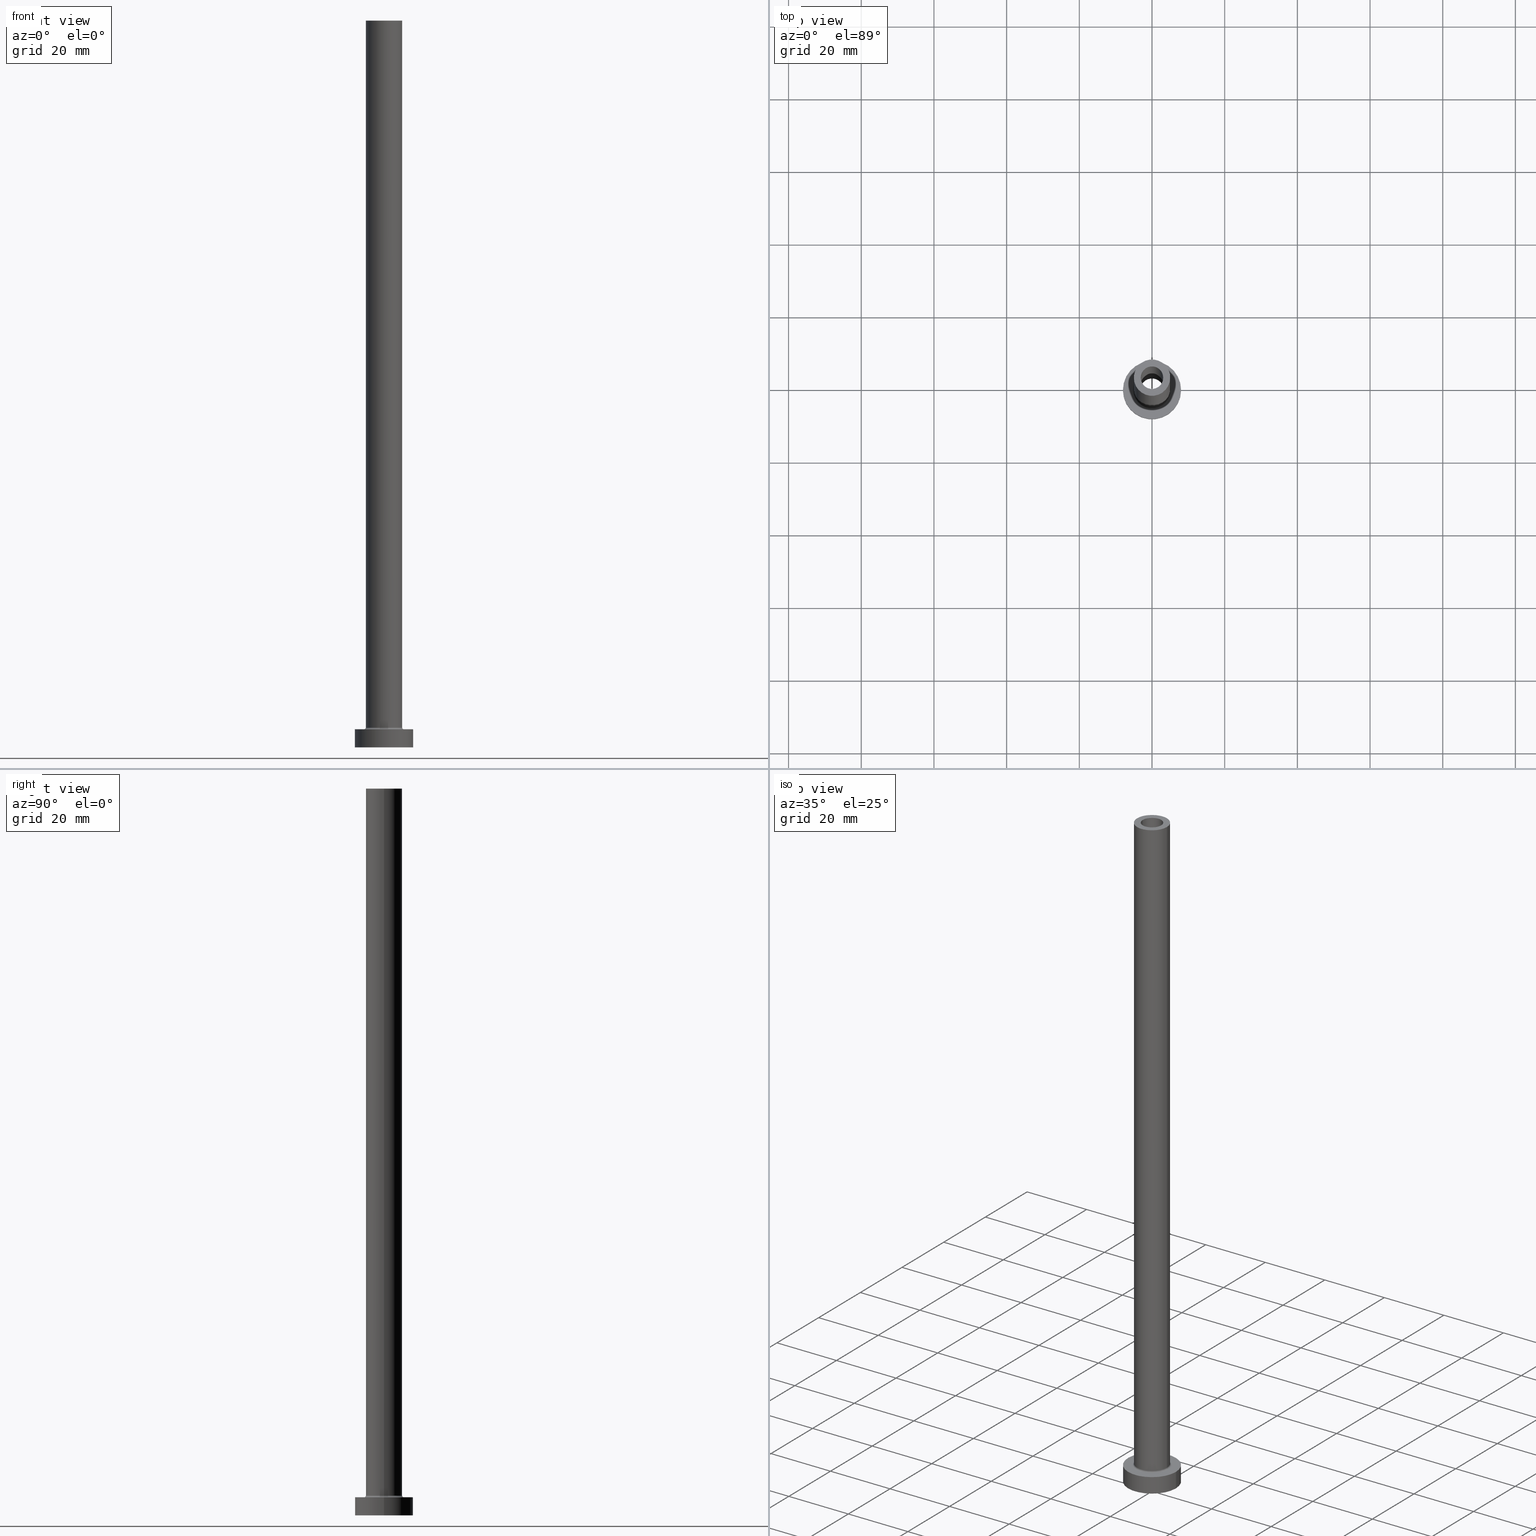
[diagram: canonical four-view strip — front | top / right | iso, engineering-drawing reading convention]
A machine part, canonical four-view strip (front | top / right | iso — engineering-drawing reading convention). The complete STEP part file that produces these views, byte-faithful:
ISO-10303-21;
HEADER;
FILE_DESCRIPTION (( 'STEP AP203' ),
    '1' );
FILE_NAME ('51bf.STEP',
    '2023-02-13T14:31:56',
    ( '' ),
    ( '' ),
    'SwSTEP 2.0',
    'SolidWorks 2019',
    '' );
FILE_SCHEMA (( 'CONFIG_CONTROL_DESIGN' ));
ENDSEC;

DATA;
#1 = CARTESIAN_POINT ( 'NONE',  ( 3.100000000000000089, 3.796405077356793932E-16, 200.0000000000000000 ) ) ;
#2 = ORIENTED_EDGE ( 'NONE', *, *, #10, .F. ) ;
#3 = LINE ( 'NONE', #324, #429 ) ;
#4 = CIRCLE ( 'NONE', #192, 3.250000000000000444 ) ;
#5 = ADVANCED_FACE ( 'NONE', ( #60 ), #376, .T. ) ;
#6 = TOROIDAL_SURFACE ( 'NONE', #163, 5.500000000000000000, 0.5000000000000000000 ) ;
#7 = LINE ( 'NONE', #145, #236 ) ;
#8 = ORIENTED_EDGE ( 'NONE', *, *, #143, .T. ) ;
#9 = FACE_BOUND ( 'NONE', #322, .T. ) ;
#10 = EDGE_CURVE ( 'NONE', #227, #153, #24, .T. ) ;
#11 = CARTESIAN_POINT ( 'NONE',  ( 0.000000000000000000, 0.000000000000000000, 5.000000000000000000 ) ) ;
#12 = AXIS2_PLACEMENT_3D ( 'NONE', #455, #129, #26 ) ;
#13 = CIRCLE ( 'NONE', #344, 3.100000000000000089 ) ;
#14 = EDGE_LOOP ( 'NONE', ( #223, #17, #74, #256 ) ) ;
#15 = DIRECTION ( 'NONE',  ( -0.000000000000000000, -0.000000000000000000, -1.000000000000000000 ) ) ;
#16 = ORIENTED_EDGE ( 'NONE', *, *, #41, .T. ) ;
#17 = ORIENTED_EDGE ( 'NONE', *, *, #238, .T. ) ;
#18 = FACE_OUTER_BOUND ( 'NONE', #258, .T. ) ;
#19 = EDGE_LOOP ( 'NONE', ( #157, #44 ) ) ;
#20 = CALENDAR_DATE ( 2023, 13, 2 ) ;
#21 = ORIENTED_EDGE ( 'NONE', *, *, #189, .F. ) ;
#22 = CARTESIAN_POINT ( 'NONE',  ( 0.000000000000000000, 0.000000000000000000, 0.000000000000000000 ) ) ;
#23 = CC_DESIGN_DATE_AND_TIME_ASSIGNMENT ( #454, #308, ( #252 ) ) ;
#24 = LINE ( 'NONE', #162, #71 ) ;
#25 = CALENDAR_DATE ( 2023, 13, 2 ) ;
#26 = DIRECTION ( 'NONE',  ( 1.000000000000000000, 0.000000000000000000, 0.000000000000000000 ) ) ;
#27 = DIRECTION ( 'NONE',  ( 1.000000000000000000, 0.000000000000000000, 0.000000000000000000 ) ) ;
#28 = EDGE_CURVE ( 'NONE', #331, #360, #277, .T. ) ;
#29 = DIRECTION ( 'NONE',  ( 1.000000000000000000, 0.000000000000000000, 0.000000000000000000 ) ) ;
#30 = CARTESIAN_POINT ( 'NONE',  ( 5.000000000000000000, 6.123233995736766282E-16, 200.0000000000000000 ) ) ;
#31 = CARTESIAN_POINT ( 'NONE',  ( 3.250000000000000444, 3.980102097228898231E-16, 155.0000000000000284 ) ) ;
#32 = CC_DESIGN_APPROVAL ( #180, ( #252 ) ) ;
#33 = CARTESIAN_POINT ( 'NONE',  ( 0.000000000000000000, 0.000000000000000000, 155.0000000000000284 ) ) ;
#34 = FACE_OUTER_BOUND ( 'NONE', #50, .T. ) ;
#35 = ORIENTED_EDGE ( 'NONE', *, *, #349, .T. ) ;
#36 = DESIGN_CONTEXT ( 'detailed design', #160, 'design' ) ;
#37 = DIRECTION ( 'NONE',  ( -0.000000000000000000, -0.000000000000000000, -1.000000000000000000 ) ) ;
#38 = CIRCLE ( 'NONE', #59, 3.250000000000000444 ) ;
#39 = CARTESIAN_POINT ( 'NONE',  ( -3.100000000000000089, 0.000000000000000000, 200.0000000000000000 ) ) ;
#40 = ORIENTED_EDGE ( 'NONE', *, *, #316, .F. ) ;
#41 = EDGE_CURVE ( 'NONE', #360, #53, #319, .T. ) ;
#42 = DIRECTION ( 'NONE',  ( 0.000000000000000000, 0.000000000000000000, -1.000000000000000000 ) ) ;
#43 = DIRECTION ( 'NONE',  ( 1.000000000000000000, 0.000000000000000000, -0.000000000000000000 ) ) ;
#44 = ORIENTED_EDGE ( 'NONE', *, *, #349, .F. ) ;
#45 = AXIS2_PLACEMENT_3D ( 'NONE', #22, #418, #29 ) ;
#46 = CARTESIAN_POINT ( 'NONE',  ( 0.000000000000000000, 0.000000000000000000, 0.000000000000000000 ) ) ;
#47 = ORIENTED_EDGE ( 'NONE', *, *, #362, .T. ) ;
#48 = CARTESIAN_POINT ( 'NONE',  ( 0.000000000000000000, 0.000000000000000000, 200.0000000000000000 ) ) ;
#49 = ORIENTED_EDGE ( 'NONE', *, *, #155, .F. ) ;
#50 = EDGE_LOOP ( 'NONE', ( #2, #35, #173, #401 ) ) ;
#51 = CIRCLE ( 'NONE', #312, 5.000000000000000000 ) ;
#52 = APPROVAL_ROLE ( '' ) ;
#53 = VERTEX_POINT ( 'NONE', #374 ) ;
#54 = EDGE_CURVE ( 'NONE', #178, #103, #131, .T. ) ;
#55 = CALENDAR_DATE ( 2023, 13, 2 ) ;
#56 = CARTESIAN_POINT ( 'NONE',  ( 0.000000000000000000, 0.000000000000000000, 5.500000000000005329 ) ) ;
#57 = DATE_AND_TIME ( #20, #219 ) ;
#58 = DIRECTION ( 'NONE',  ( 1.000000000000000000, 0.000000000000000000, -0.000000000000000000 ) ) ;
#59 = AXIS2_PLACEMENT_3D ( 'NONE', #105, #69, #247 ) ;
#60 = FACE_OUTER_BOUND ( 'NONE', #191, .T. ) ;
#61 = EDGE_CURVE ( 'NONE', #387, #153, #380, .T. ) ;
#62 = APPROVAL_ROLE ( '' ) ;
#63 = DIRECTION ( 'NONE',  ( -0.000000000000000000, -0.000000000000000000, -1.000000000000000000 ) ) ;
#64 = AXIS2_PLACEMENT_3D ( 'NONE', #235, #379, #196 ) ;
#65 = FACE_OUTER_BOUND ( 'NONE', #393, .T. ) ;
#66 = AXIS2_PLACEMENT_3D ( 'NONE', #68, #72, #240 ) ;
#67 = PLANE ( 'NONE',  #124 ) ;
#68 = CARTESIAN_POINT ( 'NONE',  ( 0.000000000000000000, 0.000000000000000000, 5.000000000000000000 ) ) ;
#69 = DIRECTION ( 'NONE',  ( -0.000000000000000000, -0.000000000000000000, -1.000000000000000000 ) ) ;
#70 = ADVANCED_FACE ( 'NONE', ( #127 ), #130, .F. ) ;
#71 = VECTOR ( 'NONE', #309, 1000.000000000000000 ) ;
#72 = DIRECTION ( 'NONE',  ( 0.000000000000000000, 0.000000000000000000, 1.000000000000000000 ) ) ;
#73 = DIRECTION ( 'NONE',  ( 1.000000000000000000, 0.000000000000000000, -0.000000000000000000 ) ) ;
#74 = ORIENTED_EDGE ( 'NONE', *, *, #189, .T. ) ;
#75 = CYLINDRICAL_SURFACE ( 'NONE', #228, 3.250000000000000444 ) ;
#76 = VERTEX_POINT ( 'NONE', #91 ) ;
#77 = CLOSED_SHELL ( 'NONE', ( #330, #456, #398, #5, #417, #355, #307, #445, #407, #388, #70, #338, #86, #222 ) ) ;
#78 = ORGANIZATION ( 'NEUR�EN�', 'NEUR�EN�', '' ) ;
#79 = APPROVAL ( #375, 'NEUR�EN�' ) ;
#80 = FACE_OUTER_BOUND ( 'NONE', #356, .T. ) ;
#81 = EDGE_LOOP ( 'NONE', ( #243, #21 ) ) ;
#82 = DIRECTION ( 'NONE',  ( 0.000000000000000000, 0.000000000000000000, 1.000000000000000000 ) ) ;
#83 = EDGE_LOOP ( 'NONE', ( #368, #408, #254, #328 ) ) ;
#84 = DIRECTION ( 'NONE',  ( 1.000000000000000000, 0.000000000000000000, 0.000000000000000000 ) ) ;
#85 = ORIENTED_EDGE ( 'NONE', *, *, #383, .F. ) ;
#86 = ADVANCED_FACE ( 'NONE', ( #424, #168 ), #233, .F. ) ;
#87 = CC_DESIGN_APPROVAL ( #170, ( #214 ) ) ;
#88 = APPROVAL_DATE_TIME ( #57, #79 ) ;
#89 = CARTESIAN_POINT ( 'NONE',  ( 0.000000000000000000, 0.000000000000000000, 200.0000000000000000 ) ) ;
#90 = PERSON_AND_ORGANIZATION_ROLE ( 'classification_officer' ) ;
#91 = CARTESIAN_POINT ( 'NONE',  ( 3.100000000000000089, 3.796405077356793932E-16, 155.0000000000000284 ) ) ;
#92 = COORDINATED_UNIVERSAL_TIME_OFFSET ( 1, 0, .AHEAD. ) ;
#93 = CARTESIAN_POINT ( 'NONE',  ( -3.250000000000000444, 0.000000000000000000, 155.0000000000000284 ) ) ;
#94 = DATE_TIME_ROLE ( 'classification_date' ) ;
#95 = CIRCLE ( 'NONE', #320, 5.500000000000000000 ) ;
#96 = CARTESIAN_POINT ( 'NONE',  ( -3.100000000000000089, 0.000000000000000000, 155.0000000000000284 ) ) ;
#97 = MANIFOLD_SOLID_BREP ( 'Odebrat vysunut�m4', #77 ) ;
#98 = CARTESIAN_POINT ( 'NONE',  ( -3.250000000000000444, 0.000000000000000000, 164.1923881554251352 ) ) ;
#99 = FACE_OUTER_BOUND ( 'NONE', #184, .T. ) ;
#100 = CC_DESIGN_PERSON_AND_ORGANIZATION_ASSIGNMENT ( #121, #370, ( #252 ) ) ;
#101 = DIRECTION ( 'NONE',  ( 0.000000000000000000, 0.000000000000000000, 1.000000000000000000 ) ) ;
#102 = DIRECTION ( 'NONE',  ( -0.000000000000000000, -0.000000000000000000, -1.000000000000000000 ) ) ;
#103 = VERTEX_POINT ( 'NONE', #166 ) ;
#104 = EDGE_CURVE ( 'NONE', #217, #294, #249, .T. ) ;
#105 = CARTESIAN_POINT ( 'NONE',  ( 0.000000000000000000, 0.000000000000000000, 0.000000000000000000 ) ) ;
#106 = ADVANCED_BREP_SHAPE_REPRESENTATION ( '51bf', ( #97, #45 ), #371 ) ;
#107 = CARTESIAN_POINT ( 'NONE',  ( 0.000000000000000000, 0.000000000000000000, 155.0000000000000284 ) ) ;
#108 = AXIS2_PLACEMENT_3D ( 'NONE', #89, #230, #199 ) ;
#109 = ORIENTED_EDGE ( 'NONE', *, *, #362, .F. ) ;
#110 = CARTESIAN_POINT ( 'NONE',  ( 8.000000000000000000, 9.797174393178825657E-16, 0.000000000000000000 ) ) ;
#111 = VERTEX_POINT ( 'NONE', #96 ) ;
#112 = CC_DESIGN_PERSON_AND_ORGANIZATION_ASSIGNMENT ( #195, #415, ( #214 ) ) ;
#113 =( NAMED_UNIT ( * ) SI_UNIT ( $, .STERADIAN. ) SOLID_ANGLE_UNIT ( ) );
#114 = VERTEX_POINT ( 'NONE', #93 ) ;
#115 = AXIS2_PLACEMENT_3D ( 'NONE', #345, #204, #382 ) ;
#116 = AXIS2_PLACEMENT_3D ( 'NONE', #46, #82, #43 ) ;
#117 = EDGE_LOOP ( 'NONE', ( #151, #176 ) ) ;
#118 = PLANE ( 'NONE',  #422 ) ;
#119 = EDGE_CURVE ( 'NONE', #178, #360, #169, .T. ) ;
#120 = ORIENTED_EDGE ( 'NONE', *, *, #238, .F. ) ;
#121 = PERSON_AND_ORGANIZATION ( #399, #78 ) ;
#122 = CARTESIAN_POINT ( 'NONE',  ( 0.000000000000000000, 0.000000000000000000, 155.0000000000000284 ) ) ;
#123 = VECTOR ( 'NONE', #306, 1000.000000000000000 ) ;
#124 = AXIS2_PLACEMENT_3D ( 'NONE', #209, #314, #384 ) ;
#125 = COORDINATED_UNIVERSAL_TIME_OFFSET ( 1, 0, .AHEAD. ) ;
#126 = DIRECTION ( 'NONE',  ( 0.000000000000000000, 0.000000000000000000, -1.000000000000000000 ) ) ;
#127 = FACE_OUTER_BOUND ( 'NONE', #432, .T. ) ;
#128 = MECHANICAL_CONTEXT ( 'NONE', #411, 'mechanical' ) ;
#129 = DIRECTION ( 'NONE',  ( 0.000000000000000000, 0.000000000000000000, 1.000000000000000000 ) ) ;
#130 = TOROIDAL_SURFACE ( 'NONE', #264, 5.500000000000000000, 0.5000000000000000000 ) ;
#131 = CIRCLE ( 'NONE', #115, 0.5000000000000004441 ) ;
#132 = CALENDAR_DATE ( 2023, 13, 2 ) ;
#133 = APPROVAL_PERSON_ORGANIZATION ( #167, #180, #373 ) ;
#134 = CARTESIAN_POINT ( 'NONE',  ( 0.000000000000000000, 0.000000000000000000, 155.0000000000000284 ) ) ;
#135 = CARTESIAN_POINT ( 'NONE',  ( 5.000000000000000000, 6.123233995736766282E-16, 200.0000000000000000 ) ) ;
#136 = CC_DESIGN_PERSON_AND_ORGANIZATION_ASSIGNMENT ( #226, #158, ( #214 ) ) ;
#137 = DIRECTION ( 'NONE',  ( 0.000000000000000000, 0.000000000000000000, 1.000000000000000000 ) ) ;
#138 = ORIENTED_EDGE ( 'NONE', *, *, #119, .T. ) ;
#139 = AXIS2_PLACEMENT_3D ( 'NONE', #452, #268, #126 ) ;
#140 = CARTESIAN_POINT ( 'NONE',  ( 0.000000000000000000, 0.000000000000000000, 5.000000000000000000 ) ) ;
#141 = CC_DESIGN_APPROVAL ( #79, ( #430 ) ) ;
#142 = ORIENTED_EDGE ( 'NONE', *, *, #216, .F. ) ;
#143 = EDGE_CURVE ( 'NONE', #331, #442, #51, .T. ) ;
#144 = UNCERTAINTY_MEASURE_WITH_UNIT (LENGTH_MEASURE( 1.000000000000000082E-05 ), #152, 'distance_accuracy_value', 'NONE');
#145 = CARTESIAN_POINT ( 'NONE',  ( -3.100000000000000089, 0.000000000000000000, 200.0000000000000000 ) ) ;
#146 = CARTESIAN_POINT ( 'NONE',  ( 0.000000000000000000, 0.000000000000000000, 200.0000000000000000 ) ) ;
#147 = DIRECTION ( 'NONE',  ( 0.000000000000000000, 0.000000000000000000, 1.000000000000000000 ) ) ;
#148 = AXIS2_PLACEMENT_3D ( 'NONE', #140, #137, #461 ) ;
#149 = CARTESIAN_POINT ( 'NONE',  ( -3.250000000000000444, 0.000000000000000000, 0.000000000000000000 ) ) ;
#150 = PRODUCT_RELATED_PRODUCT_CATEGORY ( 'detail', '', ( #390 ) ) ;
#151 = ORIENTED_EDGE ( 'NONE', *, *, #316, .T. ) ;
#152 =( LENGTH_UNIT ( ) NAMED_UNIT ( * ) SI_UNIT ( .MILLI., .METRE. ) );
#153 = VERTEX_POINT ( 'NONE', #311 ) ;
#154 = ORIENTED_EDGE ( 'NONE', *, *, #439, .F. ) ;
#155 = EDGE_CURVE ( 'NONE', #360, #178, #182, .T. ) ;
#156 =( NAMED_UNIT ( * ) PLANE_ANGLE_UNIT ( ) SI_UNIT ( $, .RADIAN. ) );
#157 = ORIENTED_EDGE ( 'NONE', *, *, #271, .F. ) ;
#158 = PERSON_AND_ORGANIZATION_ROLE ( 'design_supplier' ) ;
#159 = DIRECTION ( 'NONE',  ( 1.000000000000000000, 0.000000000000000000, 0.000000000000000000 ) ) ;
#160 = APPLICATION_CONTEXT ( 'configuration controlled 3d designs of mechanical parts and assemblies' ) ;
#161 = DATE_AND_TIME ( #25, #257 ) ;
#162 = CARTESIAN_POINT ( 'NONE',  ( 3.250000000000000444, 3.980102097228898231E-16, 164.1923881554251352 ) ) ;
#163 = AXIS2_PLACEMENT_3D ( 'NONE', #441, #359, #179 ) ;
#164 = DIRECTION ( 'NONE',  ( 0.000000000000000000, 0.000000000000000000, 1.000000000000000000 ) ) ;
#165 = EDGE_CURVE ( 'NONE', #114, #387, #270, .T. ) ;
#166 = CARTESIAN_POINT ( 'NONE',  ( -5.500000000000000000, 6.735557395310442023E-16, 5.000000000000002665 ) ) ;
#167 = PERSON_AND_ORGANIZATION ( #399, #78 ) ;
#168 = FACE_OUTER_BOUND ( 'NONE', #19, .T. ) ;
#169 = CIRCLE ( 'NONE', #12, 5.000000000000000000 ) ;
#170 = APPROVAL ( #457, 'NEUR�EN�' ) ;
#171 = CARTESIAN_POINT ( 'NONE',  ( 0.000000000000000000, 0.000000000000000000, 200.0000000000000000 ) ) ;
#172 = CARTESIAN_POINT ( 'NONE',  ( -5.000000000000000000, 0.000000000000000000, 200.0000000000000000 ) ) ;
#173 = ORIENTED_EDGE ( 'NONE', *, *, #165, .T. ) ;
#174 = DIRECTION ( 'NONE',  ( 0.000000000000000000, 0.000000000000000000, -1.000000000000000000 ) ) ;
#175 = DIRECTION ( 'NONE',  ( -1.000000000000000000, 0.000000000000000000, 0.000000000000000000 ) ) ;
#176 = ORIENTED_EDGE ( 'NONE', *, *, #287, .T. ) ;
#177 = CARTESIAN_POINT ( 'NONE',  ( 8.000000000000000000, 9.797174393178825657E-16, 5.000000000000000000 ) ) ;
#178 = VERTEX_POINT ( 'NONE', #459 ) ;
#179 = DIRECTION ( 'NONE',  ( 1.000000000000000000, 0.000000000000000000, 0.000000000000000000 ) ) ;
#180 = APPROVAL ( #423, 'NEUR�EN�' ) ;
#181 = FACE_OUTER_BOUND ( 'NONE', #14, .T. ) ;
#182 = CIRCLE ( 'NONE', #304, 5.000000000000000000 ) ;
#183 = CIRCLE ( 'NONE', #394, 3.100000000000000089 ) ;
#184 = EDGE_LOOP ( 'NONE', ( #120, #40, #295, #447 ) ) ;
#185 = DIRECTION ( 'NONE',  ( -0.000000000000000000, -0.000000000000000000, -1.000000000000000000 ) ) ;
#186 = ORIENTED_EDGE ( 'NONE', *, *, #61, .F. ) ;
#187 = DIRECTION ( 'NONE',  ( -1.000000000000000000, 0.000000000000000000, 0.000000000000000000 ) ) ;
#188 = ORIENTED_EDGE ( 'NONE', *, *, #425, .T. ) ;
#189 = EDGE_CURVE ( 'NONE', #405, #292, #437, .T. ) ;
#190 = DIRECTION ( 'NONE',  ( 1.000000000000000000, 0.000000000000000000, 0.000000000000000000 ) ) ;
#191 = EDGE_LOOP ( 'NONE', ( #436, #339, #353, #142 ) ) ;
#192 = AXIS2_PLACEMENT_3D ( 'NONE', #33, #350, #279 ) ;
#193 = SHAPE_DEFINITION_REPRESENTATION ( #246, #106 ) ;
#194 = VERTEX_POINT ( 'NONE', #302 ) ;
#195 = PERSON_AND_ORGANIZATION ( #399, #78 ) ;
#196 = DIRECTION ( 'NONE',  ( 1.000000000000000000, 0.000000000000000000, 0.000000000000000000 ) ) ;
#197 = PERSON_AND_ORGANIZATION ( #399, #78 ) ;
#198 = EDGE_CURVE ( 'NONE', #76, #111, #412, .T. ) ;
#199 = DIRECTION ( 'NONE',  ( 1.000000000000000000, 0.000000000000000000, 0.000000000000000000 ) ) ;
#200 = VECTOR ( 'NONE', #285, 1000.000000000000000 ) ;
#201 = AXIS2_PLACEMENT_3D ( 'NONE', #435, #174, #357 ) ;
#202 = DIRECTION ( 'NONE',  ( -0.000000000000000000, -0.000000000000000000, -1.000000000000000000 ) ) ;
#203 = COORDINATED_UNIVERSAL_TIME_OFFSET ( 1, 0, .AHEAD. ) ;
#204 = DIRECTION ( 'NONE',  ( 1.224646799147353207E-16, 1.000000000000000000, -0.000000000000000000 ) ) ;
#205 = EDGE_CURVE ( 'NONE', #442, #331, #361, .T. ) ;
#206 = CARTESIAN_POINT ( 'NONE',  ( 0.000000000000000000, 0.000000000000000000, 200.0000000000000000 ) ) ;
#207 = AXIS2_PLACEMENT_3D ( 'NONE', #122, #453, #263 ) ;
#208 = APPROVAL_PERSON_ORGANIZATION ( #234, #79, #52 ) ;
#209 = CARTESIAN_POINT ( 'NONE',  ( 0.000000000000000000, 0.000000000000000000, 5.000000000000000000 ) ) ;
#210 = FACE_OUTER_BOUND ( 'NONE', #397, .T. ) ;
#211 = CARTESIAN_POINT ( 'NONE',  ( 5.000000000000000000, 6.123233995736766282E-16, 5.500000000000005329 ) ) ;
#212 = ORIENTED_EDGE ( 'NONE', *, *, #104, .T. ) ;
#213 = CYLINDRICAL_SURFACE ( 'NONE', #305, 3.100000000000000089 ) ;
#214 = PRODUCT_DEFINITION_FORMATION_WITH_SPECIFIED_SOURCE ( 'LIBOVOLN�', '', #390, .NOT_KNOWN. ) ;
#215 = CYLINDRICAL_SURFACE ( 'NONE', #402, 3.100000000000000089 ) ;
#216 = EDGE_CURVE ( 'NONE', #442, #178, #341, .T. ) ;
#217 = VERTEX_POINT ( 'NONE', #1 ) ;
#218 = DIRECTION ( 'NONE',  ( 0.000000000000000000, 0.000000000000000000, -1.000000000000000000 ) ) ;
#219 = LOCAL_TIME ( 15, 31, 56.00000000000000000, #420 ) ;
#220 = EDGE_LOOP ( 'NONE', ( #372, #8 ) ) ;
#221 = DIRECTION ( 'NONE',  ( -1.000000000000000000, 0.000000000000000000, 0.000000000000000000 ) ) ;
#222 = ADVANCED_FACE ( 'NONE', ( #210 ), #215, .F. ) ;
#223 = ORIENTED_EDGE ( 'NONE', *, *, #287, .F. ) ;
#224 = CARTESIAN_POINT ( 'NONE',  ( 0.000000000000000000, 0.000000000000000000, 200.0000000000000000 ) ) ;
#225 = ORIENTED_EDGE ( 'NONE', *, *, #369, .F. ) ;
#226 = PERSON_AND_ORGANIZATION ( #399, #78 ) ;
#227 = VERTEX_POINT ( 'NONE', #31 ) ;
#228 = AXIS2_PLACEMENT_3D ( 'NONE', #367, #42, #221 ) ;
#229 = PERSON_AND_ORGANIZATION_ROLE ( 'design_owner' ) ;
#230 = DIRECTION ( 'NONE',  ( 0.000000000000000000, 0.000000000000000000, 1.000000000000000000 ) ) ;
#231 = CC_DESIGN_DATE_AND_TIME_ASSIGNMENT ( #232, #94, ( #430 ) ) ;
#232 = DATE_AND_TIME ( #132, #403 ) ;
#233 = PLANE ( 'NONE',  #458 ) ;
#234 = PERSON_AND_ORGANIZATION ( #399, #78 ) ;
#235 = CARTESIAN_POINT ( 'NONE',  ( 0.000000000000000000, 0.000000000000000000, 200.0000000000000000 ) ) ;
#236 = VECTOR ( 'NONE', #218, 1000.000000000000000 ) ;
#237 = DIRECTION ( 'NONE',  ( 0.000000000000000000, 0.000000000000000000, 1.000000000000000000 ) ) ;
#238 = EDGE_CURVE ( 'NONE', #298, #405, #3, .T. ) ;
#239 = CARTESIAN_POINT ( 'NONE',  ( 0.000000000000000000, 0.000000000000000000, 0.000000000000000000 ) ) ;
#240 = DIRECTION ( 'NONE',  ( 1.000000000000000000, 0.000000000000000000, 0.000000000000000000 ) ) ;
#241 = CIRCLE ( 'NONE', #148, 8.000000000000000000 ) ;
#242 = DIRECTION ( 'NONE',  ( 1.000000000000000000, 0.000000000000000000, 0.000000000000000000 ) ) ;
#243 = ORIENTED_EDGE ( 'NONE', *, *, #281, .F. ) ;
#244 = EDGE_CURVE ( 'NONE', #194, #292, #428, .T. ) ;
#245 = DIRECTION ( 'NONE',  ( -1.000000000000000000, 0.000000000000000000, 0.000000000000000000 ) ) ;
#246 = PRODUCT_DEFINITION_SHAPE ( 'NONE', 'NONE',  #252 ) ;
#247 = DIRECTION ( 'NONE',  ( 1.000000000000000000, 0.000000000000000000, 0.000000000000000000 ) ) ;
#248 = ORIENTED_EDGE ( 'NONE', *, *, #119, .F. ) ;
#249 = CIRCLE ( 'NONE', #108, 3.100000000000000089 ) ;
#250 = AXIS2_PLACEMENT_3D ( 'NONE', #409, #185, #332 ) ;
#251 = CARTESIAN_POINT ( 'NONE',  ( -8.000000000000000000, 0.000000000000000000, 0.000000000000000000 ) ) ;
#252 = PRODUCT_DEFINITION ( 'NEZN�M�', '', #214, #36 ) ;
#253 = CARTESIAN_POINT ( 'NONE',  ( 0.000000000000000000, 0.000000000000000000, 155.0000000000000284 ) ) ;
#254 = ORIENTED_EDGE ( 'NONE', *, *, #323, .T. ) ;
#255 = CYLINDRICAL_SURFACE ( 'NONE', #282, 8.000000000000000000 ) ;
#256 = ORIENTED_EDGE ( 'NONE', *, *, #244, .F. ) ;
#257 = LOCAL_TIME ( 15, 31, 56.00000000000000000, #203 ) ;
#258 = EDGE_LOOP ( 'NONE', ( #351, #300, #410, #138 ) ) ;
#259 = FACE_BOUND ( 'NONE', #444, .T. ) ;
#260 = ORIENTED_EDGE ( 'NONE', *, *, #439, .T. ) ;
#261 = DIRECTION ( 'NONE',  ( 0.000000000000000000, 0.000000000000000000, 1.000000000000000000 ) ) ;
#262 = ORIENTED_EDGE ( 'NONE', *, *, #54, .T. ) ;
#263 = DIRECTION ( 'NONE',  ( 1.000000000000000000, 0.000000000000000000, 0.000000000000000000 ) ) ;
#264 = AXIS2_PLACEMENT_3D ( 'NONE', #346, #237, #27 ) ;
#265 = CC_DESIGN_PERSON_AND_ORGANIZATION_ASSIGNMENT ( #377, #90, ( #430 ) ) ;
#266 = AXIS2_PLACEMENT_3D ( 'NONE', #107, #318, #426 ) ;
#267 = PERSON_AND_ORGANIZATION ( #399, #78 ) ;
#268 = DIRECTION ( 'NONE',  ( 0.000000000000000000, -1.000000000000000000, 0.000000000000000000 ) ) ;
#269 = CALENDAR_DATE ( 2023, 13, 2 ) ;
#270 = LINE ( 'NONE', #98, #123 ) ;
#271 = EDGE_CURVE ( 'NONE', #114, #227, #4, .T. ) ;
#272 = SECURITY_CLASSIFICATION_LEVEL ( 'unclassified' ) ;
#273 = CARTESIAN_POINT ( 'NONE',  ( 0.000000000000000000, 0.000000000000000000, 0.000000000000000000 ) ) ;
#274 = AXIS2_PLACEMENT_3D ( 'NONE', #303, #414, #450 ) ;
#275 = CC_DESIGN_SECURITY_CLASSIFICATION ( #430, ( #214 ) ) ;
#276 = APPLICATION_PROTOCOL_DEFINITION ( 'international standard', 'config_control_design', 1994, #160 ) ;
#277 = LINE ( 'NONE', #30, #335 ) ;
#278 = CARTESIAN_POINT ( 'NONE',  ( 0.000000000000000000, 0.000000000000000000, 0.000000000000000000 ) ) ;
#279 = DIRECTION ( 'NONE',  ( 1.000000000000000000, 0.000000000000000000, 0.000000000000000000 ) ) ;
#280 = ORIENTED_EDGE ( 'NONE', *, *, #198, .F. ) ;
#281 = EDGE_CURVE ( 'NONE', #292, #405, #326, .T. ) ;
#282 = AXIS2_PLACEMENT_3D ( 'NONE', #11, #15, #400 ) ;
#283 = CYLINDRICAL_SURFACE ( 'NONE', #348, 8.000000000000000000 ) ;
#284 = ORIENTED_EDGE ( 'NONE', *, *, #104, .F. ) ;
#285 = DIRECTION ( 'NONE',  ( -0.000000000000000000, -0.000000000000000000, -1.000000000000000000 ) ) ;
#286 = ORIENTED_EDGE ( 'NONE', *, *, #378, .T. ) ;
#287 = EDGE_CURVE ( 'NONE', #298, #194, #460, .T. ) ;
#288 = CYLINDRICAL_SURFACE ( 'NONE', #201, 3.250000000000000444 ) ;
#289 = AXIS2_PLACEMENT_3D ( 'NONE', #239, #347, #159 ) ;
#290 = LOCAL_TIME ( 15, 31, 56.00000000000000000, #125 ) ;
#291 = DIRECTION ( 'NONE',  ( 0.000000000000000000, 0.000000000000000000, -1.000000000000000000 ) ) ;
#292 = VERTEX_POINT ( 'NONE', #251 ) ;
#293 = DIRECTION ( 'NONE',  ( 0.000000000000000000, 0.000000000000000000, 1.000000000000000000 ) ) ;
#294 = VERTEX_POINT ( 'NONE', #39 ) ;
#295 = ORIENTED_EDGE ( 'NONE', *, *, #244, .T. ) ;
#296 = FACE_OUTER_BOUND ( 'NONE', #220, .T. ) ;
#297 = AXIS2_PLACEMENT_3D ( 'NONE', #278, #101, #242 ) ;
#298 = VERTEX_POINT ( 'NONE', #177 ) ;
#299 = CARTESIAN_POINT ( 'NONE',  ( 0.000000000000000000, 0.000000000000000000, 200.0000000000000000 ) ) ;
#300 = ORIENTED_EDGE ( 'NONE', *, *, #205, .F. ) ;
#301 = CC_DESIGN_PERSON_AND_ORGANIZATION_ASSIGNMENT ( #267, #229, ( #390 ) ) ;
#302 = CARTESIAN_POINT ( 'NONE',  ( -8.000000000000000000, 0.000000000000000000, 5.000000000000000000 ) ) ;
#303 = CARTESIAN_POINT ( 'NONE',  ( 0.000000000000000000, 0.000000000000000000, 200.0000000000000000 ) ) ;
#304 = AXIS2_PLACEMENT_3D ( 'NONE', #56, #164, #421 ) ;
#305 = AXIS2_PLACEMENT_3D ( 'NONE', #146, #352, #175 ) ;
#306 = DIRECTION ( 'NONE',  ( 0.000000000000000000, 0.000000000000000000, -1.000000000000000000 ) ) ;
#307 = ADVANCED_FACE ( 'NONE', ( #9, #386 ), #67, .T. ) ;
#308 = DATE_TIME_ROLE ( 'creation_date' ) ;
#309 = DIRECTION ( 'NONE',  ( 0.000000000000000000, 0.000000000000000000, -1.000000000000000000 ) ) ;
#310 = APPROVAL_DATE_TIME ( #342, #170 ) ;
#311 = CARTESIAN_POINT ( 'NONE',  ( 3.250000000000000444, 3.980102097228898231E-16, 0.000000000000000000 ) ) ;
#312 = AXIS2_PLACEMENT_3D ( 'NONE', #206, #381, #343 ) ;
#313 = VECTOR ( 'NONE', #291, 1000.000000000000000 ) ;
#314 = DIRECTION ( 'NONE',  ( 0.000000000000000000, 0.000000000000000000, 1.000000000000000000 ) ) ;
#315 = DIRECTION ( 'NONE',  ( -0.000000000000000000, -0.000000000000000000, -1.000000000000000000 ) ) ;
#316 = EDGE_CURVE ( 'NONE', #194, #298, #241, .T. ) ;
#317 = ORIENTED_EDGE ( 'NONE', *, *, #383, .T. ) ;
#318 = DIRECTION ( 'NONE',  ( 0.000000000000000000, 0.000000000000000000, 1.000000000000000000 ) ) ;
#319 = CIRCLE ( 'NONE', #139, 0.5000000000000004441 ) ;
#320 = AXIS2_PLACEMENT_3D ( 'NONE', #354, #37, #321 ) ;
#321 = DIRECTION ( 'NONE',  ( 1.000000000000000000, 0.000000000000000000, 0.000000000000000000 ) ) ;
#322 = EDGE_LOOP ( 'NONE', ( #47, #188 ) ) ;
#323 = EDGE_CURVE ( 'NONE', #153, #387, #38, .T. ) ;
#324 = CARTESIAN_POINT ( 'NONE',  ( 8.000000000000000000, 9.797174393178825657E-16, 5.000000000000000000 ) ) ;
#325 = VECTOR ( 'NONE', #433, 1000.000000000000000 ) ;
#326 = CIRCLE ( 'NONE', #297, 8.000000000000000000 ) ;
#327 = FACE_OUTER_BOUND ( 'NONE', #81, .T. ) ;
#328 = ORIENTED_EDGE ( 'NONE', *, *, #165, .F. ) ;
#329 = FACE_OUTER_BOUND ( 'NONE', #83, .T. ) ;
#330 = ADVANCED_FACE ( 'NONE', ( #65 ), #213, .F. ) ;
#331 = VERTEX_POINT ( 'NONE', #135 ) ;
#332 = DIRECTION ( 'NONE',  ( 1.000000000000000000, 0.000000000000000000, 0.000000000000000000 ) ) ;
#333 = ORIENTED_EDGE ( 'NONE', *, *, #41, .F. ) ;
#334 = AXIS2_PLACEMENT_3D ( 'NONE', #273, #63, #416 ) ;
#335 = VECTOR ( 'NONE', #202, 1000.000000000000000 ) ;
#336 = CIRCLE ( 'NONE', #250, 5.500000000000000000 ) ;
#337 = EDGE_LOOP ( 'NONE', ( #186, #391 ) ) ;
#338 = ADVANCED_FACE ( 'NONE', ( #34 ), #288, .F. ) ;
#339 = ORIENTED_EDGE ( 'NONE', *, *, #28, .T. ) ;
#340 = COORDINATED_UNIVERSAL_TIME_OFFSET ( 1, 0, .AHEAD. ) ;
#341 = LINE ( 'NONE', #172, #325 ) ;
#342 = DATE_AND_TIME ( #55, #363 ) ;
#343 = DIRECTION ( 'NONE',  ( 1.000000000000000000, 0.000000000000000000, 0.000000000000000000 ) ) ;
#344 = AXIS2_PLACEMENT_3D ( 'NONE', #299, #147, #84 ) ;
#345 = CARTESIAN_POINT ( 'NONE',  ( -5.500000000000000000, 6.735557395310442023E-16, 5.500000000000005329 ) ) ;
#346 = CARTESIAN_POINT ( 'NONE',  ( 0.000000000000000000, 0.000000000000000000, 5.500000000000005329 ) ) ;
#347 = DIRECTION ( 'NONE',  ( 0.000000000000000000, 0.000000000000000000, 1.000000000000000000 ) ) ;
#348 = AXIS2_PLACEMENT_3D ( 'NONE', #431, #102, #245 ) ;
#349 = EDGE_CURVE ( 'NONE', #227, #114, #446, .T. ) ;
#350 = DIRECTION ( 'NONE',  ( 0.000000000000000000, 0.000000000000000000, 1.000000000000000000 ) ) ;
#351 = ORIENTED_EDGE ( 'NONE', *, *, #28, .F. ) ;
#352 = DIRECTION ( 'NONE',  ( 0.000000000000000000, 0.000000000000000000, -1.000000000000000000 ) ) ;
#353 = ORIENTED_EDGE ( 'NONE', *, *, #155, .T. ) ;
#354 = CARTESIAN_POINT ( 'NONE',  ( 0.000000000000000000, 0.000000000000000000, 5.000000000000000000 ) ) ;
#355 = ADVANCED_FACE ( 'NONE', ( #99 ), #283, .T. ) ;
#356 = EDGE_LOOP ( 'NONE', ( #248, #262, #109, #333 ) ) ;
#357 = DIRECTION ( 'NONE',  ( -1.000000000000000000, 0.000000000000000000, 0.000000000000000000 ) ) ;
#358 = FACE_BOUND ( 'NONE', #337, .T. ) ;
#359 = DIRECTION ( 'NONE',  ( 0.000000000000000000, 0.000000000000000000, 1.000000000000000000 ) ) ;
#360 = VERTEX_POINT ( 'NONE', #211 ) ;
#361 = CIRCLE ( 'NONE', #64, 5.000000000000000000 ) ;
#362 = EDGE_CURVE ( 'NONE', #53, #103, #95, .T. ) ;
#363 = LOCAL_TIME ( 15, 31, 56.00000000000000000, #92 ) ;
#364 = CARTESIAN_POINT ( 'NONE',  ( 3.100000000000000089, 3.796405077356793932E-16, 200.0000000000000000 ) ) ;
#365 = EDGE_LOOP ( 'NONE', ( #260, #440 ) ) ;
#366 = ORIENTED_EDGE ( 'NONE', *, *, #54, .F. ) ;
#367 = CARTESIAN_POINT ( 'NONE',  ( 0.000000000000000000, 0.000000000000000000, 164.1923881554251352 ) ) ;
#368 = ORIENTED_EDGE ( 'NONE', *, *, #271, .T. ) ;
#369 = EDGE_CURVE ( 'NONE', #294, #111, #7, .T. ) ;
#370 = PERSON_AND_ORGANIZATION_ROLE ( 'creator' ) ;
#371 =( GEOMETRIC_REPRESENTATION_CONTEXT ( 3 ) GLOBAL_UNCERTAINTY_ASSIGNED_CONTEXT ( ( #144 ) ) GLOBAL_UNIT_ASSIGNED_CONTEXT ( ( #152, #156, #113 ) ) REPRESENTATION_CONTEXT ( 'NONE', 'WORKASPACE' ) );
#372 = ORIENTED_EDGE ( 'NONE', *, *, #205, .T. ) ;
#373 = APPROVAL_ROLE ( '' ) ;
#374 = CARTESIAN_POINT ( 'NONE',  ( 5.500000000000000000, 0.000000000000000000, 5.000000000000002665 ) ) ;
#375 = APPROVAL_STATUS ( 'not_yet_approved' ) ;
#376 = CYLINDRICAL_SURFACE ( 'NONE', #274, 5.000000000000000000 ) ;
#377 = PERSON_AND_ORGANIZATION ( #399, #78 ) ;
#378 = EDGE_CURVE ( 'NONE', #294, #217, #13, .T. ) ;
#379 = DIRECTION ( 'NONE',  ( 0.000000000000000000, 0.000000000000000000, 1.000000000000000000 ) ) ;
#380 = CIRCLE ( 'NONE', #334, 3.250000000000000444 ) ;
#381 = DIRECTION ( 'NONE',  ( 0.000000000000000000, 0.000000000000000000, 1.000000000000000000 ) ) ;
#382 = DIRECTION ( 'NONE',  ( -1.000000000000000000, 1.224646799147351482E-16, 0.000000000000000000 ) ) ;
#383 = EDGE_CURVE ( 'NONE', #217, #76, #404, .T. ) ;
#384 = DIRECTION ( 'NONE',  ( 1.000000000000000000, 0.000000000000000000, -0.000000000000000000 ) ) ;
#385 = AXIS2_PLACEMENT_3D ( 'NONE', #224, #406, #187 ) ;
#386 = FACE_OUTER_BOUND ( 'NONE', #117, .T. ) ;
#387 = VERTEX_POINT ( 'NONE', #149 ) ;
#388 = ADVANCED_FACE ( 'NONE', ( #259, #296 ), #118, .T. ) ;
#389 = DIRECTION ( 'NONE',  ( 0.000000000000000000, 0.000000000000000000, -1.000000000000000000 ) ) ;
#390 = PRODUCT ( '51bf', '51bf', '', ( #128 ) ) ;
#391 = ORIENTED_EDGE ( 'NONE', *, *, #323, .F. ) ;
#392 = CARTESIAN_POINT ( 'NONE',  ( -8.000000000000000000, 0.000000000000000000, 5.000000000000000000 ) ) ;
#393 = EDGE_LOOP ( 'NONE', ( #286, #317, #154, #225 ) ) ;
#394 = AXIS2_PLACEMENT_3D ( 'NONE', #253, #261, #190 ) ;
#395 = DIRECTION ( 'NONE',  ( -1.000000000000000000, 0.000000000000000000, 0.000000000000000000 ) ) ;
#396 = APPLICATION_PROTOCOL_DEFINITION ( 'international standard', 'config_control_design', 1994, #411 ) ;
#397 = EDGE_LOOP ( 'NONE', ( #85, #212, #434, #280 ) ) ;
#398 = ADVANCED_FACE ( 'NONE', ( #80 ), #6, .F. ) ;
#399 = PERSON ( 'NEUR�EN�', 'NEUR�EN�', 'NEUR�EN�', ('NEUR�EN�'), ('NEUR�EN�'), ('NEUR�EN�') ) ;
#400 = DIRECTION ( 'NONE',  ( -1.000000000000000000, 0.000000000000000000, 0.000000000000000000 ) ) ;
#401 = ORIENTED_EDGE ( 'NONE', *, *, #61, .T. ) ;
#402 = AXIS2_PLACEMENT_3D ( 'NONE', #171, #389, #395 ) ;
#403 = LOCAL_TIME ( 15, 31, 56.00000000000000000, #340 ) ;
#404 = LINE ( 'NONE', #364, #313 ) ;
#405 = VERTEX_POINT ( 'NONE', #110 ) ;
#406 = DIRECTION ( 'NONE',  ( -0.000000000000000000, -0.000000000000000000, -1.000000000000000000 ) ) ;
#407 = ADVANCED_FACE ( 'NONE', ( #18 ), #443, .T. ) ;
#408 = ORIENTED_EDGE ( 'NONE', *, *, #10, .T. ) ;
#409 = CARTESIAN_POINT ( 'NONE',  ( 0.000000000000000000, 0.000000000000000000, 5.000000000000000000 ) ) ;
#410 = ORIENTED_EDGE ( 'NONE', *, *, #216, .T. ) ;
#411 = APPLICATION_CONTEXT ( 'configuration controlled 3d designs of mechanical parts and assemblies' ) ;
#412 = CIRCLE ( 'NONE', #207, 3.100000000000000089 ) ;
#413 = APPROVAL_PERSON_ORGANIZATION ( #197, #170, #62 ) ;
#414 = DIRECTION ( 'NONE',  ( -0.000000000000000000, -0.000000000000000000, -1.000000000000000000 ) ) ;
#415 = PERSON_AND_ORGANIZATION_ROLE ( 'creator' ) ;
#416 = DIRECTION ( 'NONE',  ( 1.000000000000000000, 0.000000000000000000, 0.000000000000000000 ) ) ;
#417 = ADVANCED_FACE ( 'NONE', ( #181 ), #255, .T. ) ;
#418 = DIRECTION ( 'NONE',  ( 0.000000000000000000, 0.000000000000000000, 1.000000000000000000 ) ) ;
#419 = DIRECTION ( 'NONE',  ( 0.000000000000000000, 0.000000000000000000, 1.000000000000000000 ) ) ;
#420 = COORDINATED_UNIVERSAL_TIME_OFFSET ( 1, 0, .AHEAD. ) ;
#421 = DIRECTION ( 'NONE',  ( 1.000000000000000000, 0.000000000000000000, 0.000000000000000000 ) ) ;
#422 = AXIS2_PLACEMENT_3D ( 'NONE', #48, #293, #73 ) ;
#423 = APPROVAL_STATUS ( 'not_yet_approved' ) ;
#424 = FACE_BOUND ( 'NONE', #365, .T. ) ;
#425 = EDGE_CURVE ( 'NONE', #103, #53, #336, .T. ) ;
#426 = DIRECTION ( 'NONE',  ( 1.000000000000000000, 0.000000000000000000, 0.000000000000000000 ) ) ;
#427 = ORIENTED_EDGE ( 'NONE', *, *, #378, .F. ) ;
#428 = LINE ( 'NONE', #392, #200 ) ;
#429 = VECTOR ( 'NONE', #315, 1000.000000000000000 ) ;
#430 = SECURITY_CLASSIFICATION ( '', '', #272 ) ;
#431 = CARTESIAN_POINT ( 'NONE',  ( 0.000000000000000000, 0.000000000000000000, 5.000000000000000000 ) ) ;
#432 = EDGE_LOOP ( 'NONE', ( #366, #49, #16, #449 ) ) ;
#433 = DIRECTION ( 'NONE',  ( -0.000000000000000000, -0.000000000000000000, -1.000000000000000000 ) ) ;
#434 = ORIENTED_EDGE ( 'NONE', *, *, #369, .T. ) ;
#435 = CARTESIAN_POINT ( 'NONE',  ( 0.000000000000000000, 0.000000000000000000, 164.1923881554251352 ) ) ;
#436 = ORIENTED_EDGE ( 'NONE', *, *, #143, .F. ) ;
#437 = CIRCLE ( 'NONE', #289, 8.000000000000000000 ) ;
#438 = CARTESIAN_POINT ( 'NONE',  ( -5.000000000000000000, 0.000000000000000000, 200.0000000000000000 ) ) ;
#439 = EDGE_CURVE ( 'NONE', #111, #76, #183, .T. ) ;
#440 = ORIENTED_EDGE ( 'NONE', *, *, #198, .T. ) ;
#441 = CARTESIAN_POINT ( 'NONE',  ( 0.000000000000000000, 0.000000000000000000, 5.500000000000005329 ) ) ;
#442 = VERTEX_POINT ( 'NONE', #438 ) ;
#443 = CYLINDRICAL_SURFACE ( 'NONE', #385, 5.000000000000000000 ) ;
#444 = EDGE_LOOP ( 'NONE', ( #427, #284 ) ) ;
#445 = ADVANCED_FACE ( 'NONE', ( #358, #327 ), #448, .F. ) ;
#446 = CIRCLE ( 'NONE', #266, 3.250000000000000444 ) ;
#447 = ORIENTED_EDGE ( 'NONE', *, *, #281, .T. ) ;
#448 = PLANE ( 'NONE',  #116 ) ;
#449 = ORIENTED_EDGE ( 'NONE', *, *, #425, .F. ) ;
#450 = DIRECTION ( 'NONE',  ( -1.000000000000000000, 0.000000000000000000, 0.000000000000000000 ) ) ;
#451 = APPROVAL_DATE_TIME ( #161, #180 ) ;
#452 = CARTESIAN_POINT ( 'NONE',  ( 5.500000000000000000, 0.000000000000000000, 5.500000000000005329 ) ) ;
#453 = DIRECTION ( 'NONE',  ( 0.000000000000000000, 0.000000000000000000, 1.000000000000000000 ) ) ;
#454 = DATE_AND_TIME ( #269, #290 ) ;
#455 = CARTESIAN_POINT ( 'NONE',  ( 0.000000000000000000, 0.000000000000000000, 5.500000000000005329 ) ) ;
#456 = ADVANCED_FACE ( 'NONE', ( #329 ), #75, .F. ) ;
#457 = APPROVAL_STATUS ( 'not_yet_approved' ) ;
#458 = AXIS2_PLACEMENT_3D ( 'NONE', #134, #419, #58 ) ;
#459 = CARTESIAN_POINT ( 'NONE',  ( -5.000000000000000000, 0.000000000000000000, 5.500000000000005329 ) ) ;
#460 = CIRCLE ( 'NONE', #66, 8.000000000000000000 ) ;
#461 = DIRECTION ( 'NONE',  ( 1.000000000000000000, 0.000000000000000000, 0.000000000000000000 ) ) ;
ENDSEC;
END-ISO-10303-21;
